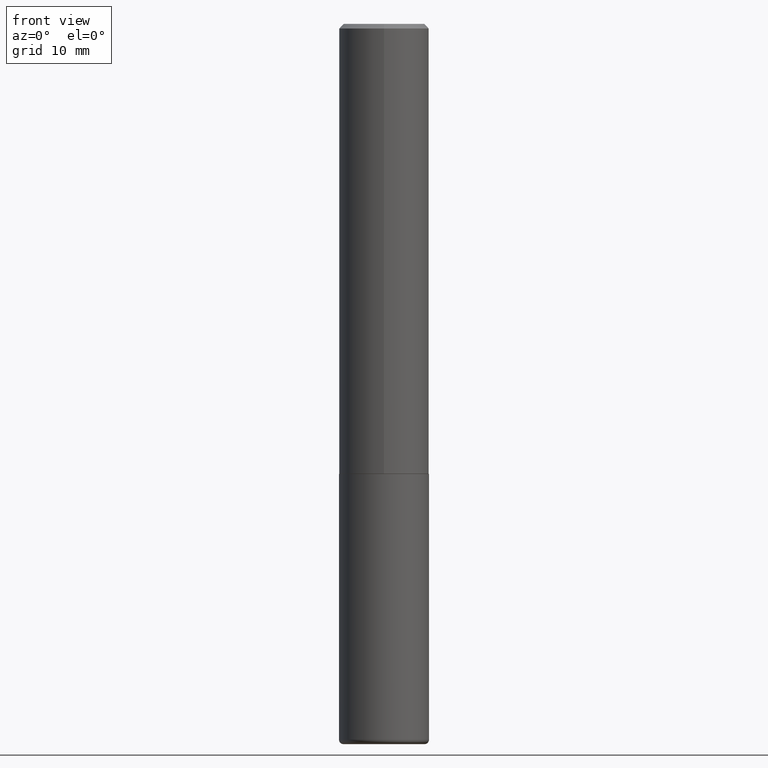
[diagram: clean part render]
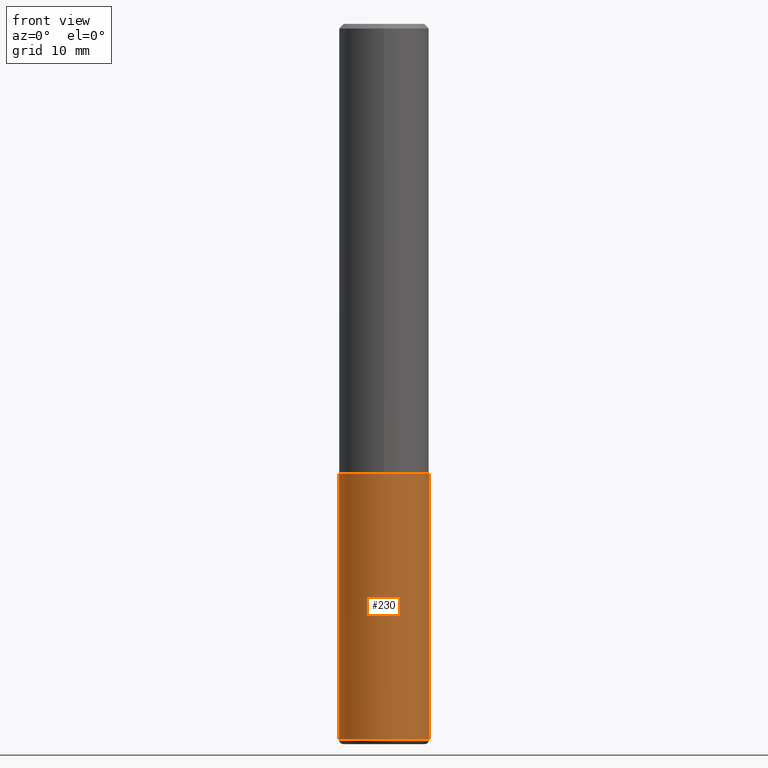
[diagram: same view with one face highlighted and labeled with its STEP entity id]
A machine part, front view. The second image highlights one B-rep face of the part: STEP entity #230.
In plain terms, the highlighted cylindrical surface (partial cylindrical patch) has radius 5 mm, axis along (-0, 0, 1).
Its self-contained STEP definition (entity closure, byte-faithful):
#2 = DIRECTION ( 'NONE',  ( 1.000000000000000000, -6.982962677686266711E-15, 4.876176775795935793E-29 ) ) ;
#21 = VECTOR ( 'NONE', #109, 39.37007874015748143 ) ;
#26 = DIRECTION ( 'NONE',  ( -2.445468806185136597E-29, 3.491481338843145583E-15, 1.000000000000000000 ) ) ;
#27 = EDGE_CURVE ( 'NONE', #190, #381, #357, .T. ) ;
#38 = FACE_OUTER_BOUND ( 'NONE', #128, .T. ) ;
#56 = VERTEX_POINT ( 'NONE', #298 ) ;
#58 = AXIS2_PLACEMENT_3D ( 'NONE', #242, #401, #2 ) ;
#68 = ORIENTED_EDGE ( 'NONE', *, *, #184, .T. ) ;
#69 = AXIS2_PLACEMENT_3D ( 'NONE', #285, #26, #287 ) ;
#105 = DIRECTION ( 'NONE',  ( 1.000000000000000000, -6.982962677686267499E-15, 0.000000000000000000 ) ) ;
#108 = LINE ( 'NONE', #388, #253 ) ;
#109 = DIRECTION ( 'NONE',  ( -2.445468806185136877E-29, 3.491481338843145188E-15, 1.000000000000000000 ) ) ;
#123 = EDGE_CURVE ( 'NONE', #190, #56, #340, .T. ) ;
#128 = EDGE_LOOP ( 'NONE', ( #283, #154, #68, #373 ) ) ;
#154 = ORIENTED_EDGE ( 'NONE', *, *, #123, .T. ) ;
#182 = CARTESIAN_POINT ( 'NONE',  ( 0.1968500000000000250, -8.247577218615273316E-15, -1.968499999999999694 ) ) ;
#184 = EDGE_CURVE ( 'NONE', #56, #325, #108, .T. ) ;
#190 = VERTEX_POINT ( 'NONE', #233 ) ;
#205 = CYLINDRICAL_SURFACE ( 'NONE', #58, 0.1968499999999999694 ) ;
#209 = CARTESIAN_POINT ( 'NONE',  ( -0.1968499999999999694, 1.398703375343756999E-15, -9.682923725166782276E-30 ) ) ;
#229 = CARTESIAN_POINT ( 'NONE',  ( -0.1968500000000000250, -7.501780853635190206E-15, -1.968499999999999694 ) ) ;
#230 = ADVANCED_FACE ( 'NONE', ( #38 ), #205, .T. ) ;
#233 = CARTESIAN_POINT ( 'NONE',  ( -0.1968499999999999417, -9.529284067101404126E-15, -3.129900000000000571 ) ) ;
#242 = CARTESIAN_POINT ( 'NONE',  ( 0.000000000000000000, 0.000000000000000000, 0.000000000000000000 ) ) ;
#253 = VECTOR ( 'NONE', #392, 39.37007874015748143 ) ;
#263 = CARTESIAN_POINT ( 'NONE',  ( 4.813905344975440714E-29, -6.872981015512730918E-15, -1.968499999999999694 ) ) ;
#283 = ORIENTED_EDGE ( 'NONE', *, *, #27, .F. ) ;
#285 = CARTESIAN_POINT ( 'NONE',  ( 7.654072816478859974E-29, -1.092798744244516270E-14, -3.129900000000000571 ) ) ;
#287 = DIRECTION ( 'NONE',  ( 1.000000000000000000, -6.982962677686269866E-15, 0.000000000000000000 ) ) ;
#298 = CARTESIAN_POINT ( 'NONE',  ( 0.1968499999999999417, -1.230258364554770273E-14, -3.129900000000000571 ) ) ;
#325 = VERTEX_POINT ( 'NONE', #182 ) ;
#340 = CIRCLE ( 'NONE', #69, 0.1968499999999999694 ) ;
#357 = LINE ( 'NONE', #209, #21 ) ;
#373 = ORIENTED_EDGE ( 'NONE', *, *, #409, .F. ) ;
#381 = VERTEX_POINT ( 'NONE', #229 ) ;
#386 = DIRECTION ( 'NONE',  ( -2.445468806185136597E-29, 3.491481338843145583E-15, 1.000000000000000000 ) ) ;
#388 = CARTESIAN_POINT ( 'NONE',  ( 0.1968499999999999694, -1.374596203102541411E-15, 9.598753983154298056E-30 ) ) ;
#392 = DIRECTION ( 'NONE',  ( -2.445468806185136877E-29, 3.491481338843145188E-15, 1.000000000000000000 ) ) ;
#401 = DIRECTION ( 'NONE',  ( -2.445468806185136597E-29, 3.491481338843145583E-15, 1.000000000000000000 ) ) ;
#406 = CIRCLE ( 'NONE', #407, 0.1968500000000000250 ) ;
#407 = AXIS2_PLACEMENT_3D ( 'NONE', #263, #386, #105 ) ;
#409 = EDGE_CURVE ( 'NONE', #381, #325, #406, .T. ) ;